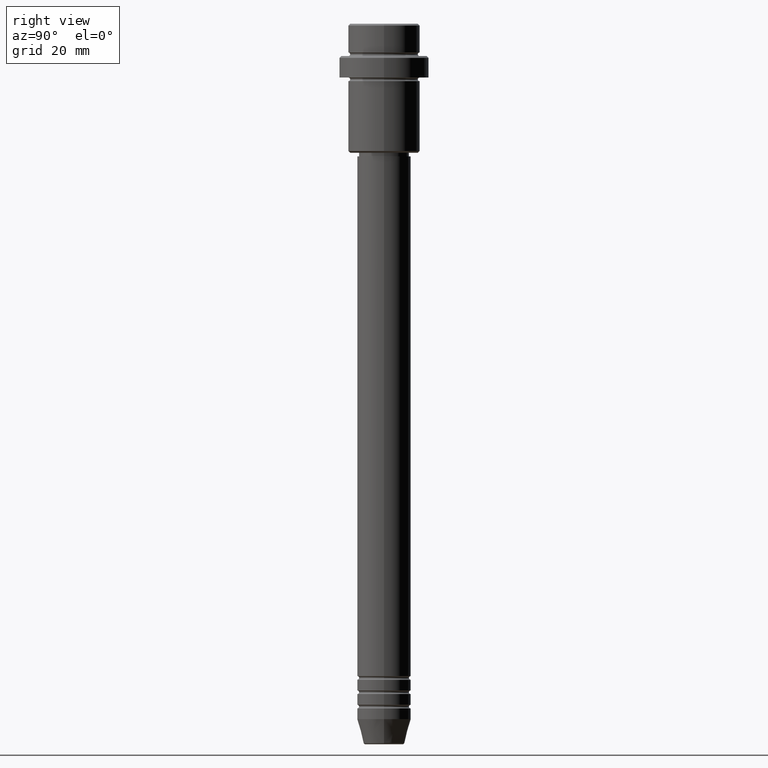
[diagram: clean part render]
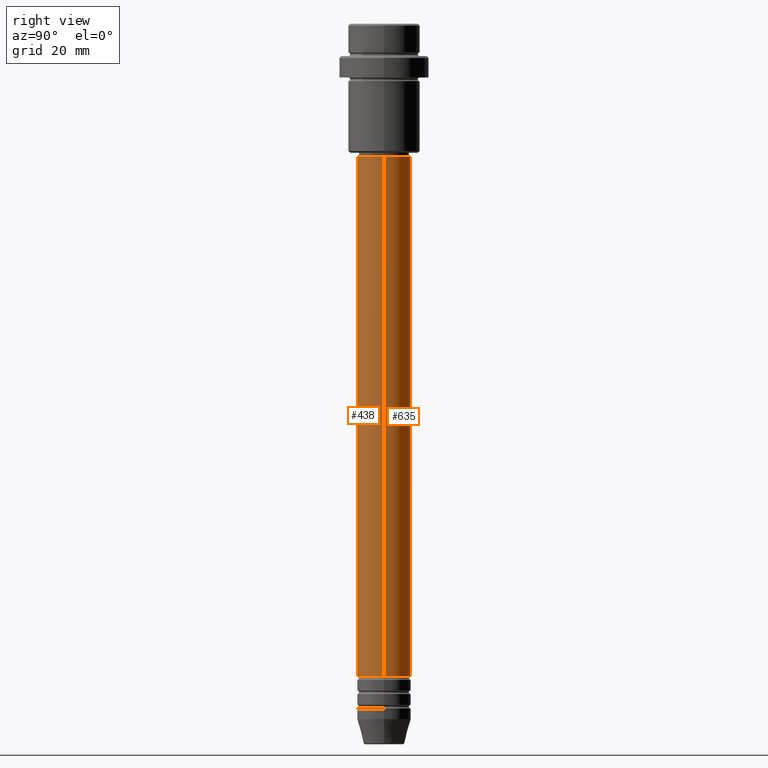
[diagram: same view with one multi-face feature highlighted, each face labeled with its STEP entity id]
A machine part, right view. The highlighted faces form ONE feature: a constant-radius fillet chain: 2 tangent blend faces with common blend radius 7.5 mm. The faces share edges in the B-rep.
Their STEP definitions:
[1] entity #635 (Cylinder):
#11 = CIRCLE ( 'NONE', #124, 7.500000000000000000 ) ;
#18 = CARTESIAN_POINT ( 'NONE',  ( 0.000000000000000000, 0.000000000000000000, -181.9999999999998863 ) ) ;
#38 = VERTEX_POINT ( 'NONE', #1145 ) ;
#55 = AXIS2_PLACEMENT_3D ( 'NONE', #434, #522, #1403 ) ;
#62 = DIRECTION ( 'NONE',  ( -0.000000000000000000, -0.000000000000000000, 1.000000000000000000 ) ) ;
#82 = LINE ( 'NONE', #746, #422 ) ;
#106 = CARTESIAN_POINT ( 'NONE',  ( -7.500000000000000000, 9.184850993605147944E-16, 0.000000000000000000 ) ) ;
#108 = CYLINDRICAL_SURFACE ( 'NONE', #55, 7.500000000000000000 ) ;
#115 = DIRECTION ( 'NONE',  ( -0.000000000000000000, -0.000000000000000000, 1.000000000000000000 ) ) ;
#124 = AXIS2_PLACEMENT_3D ( 'NONE', #1372, #62, #934 ) ;
#189 = ORIENTED_EDGE ( 'NONE', *, *, #1124, .T. ) ;
#378 = VECTOR ( 'NONE', #432, 1000.000000000000000 ) ;
#422 = VECTOR ( 'NONE', #755, 1000.000000000000000 ) ;
#432 = DIRECTION ( 'NONE',  ( -0.000000000000000000, -0.000000000000000000, 1.000000000000000000 ) ) ;
#434 = CARTESIAN_POINT ( 'NONE',  ( 0.000000000000000000, 0.000000000000000000, 0.000000000000000000 ) ) ;
#504 = CARTESIAN_POINT ( 'NONE',  ( -7.500000000000000000, 9.184850993605147944E-16, -37.00000000000000711 ) ) ;
#522 = DIRECTION ( 'NONE',  ( -0.000000000000000000, -0.000000000000000000, 1.000000000000000000 ) ) ;
#635 = ADVANCED_FACE ( 'NONE', ( #644 ), #108, .T. ) ;
#641 = ORIENTED_EDGE ( 'NONE', *, *, #1203, .F. ) ;
#644 = FACE_OUTER_BOUND ( 'NONE', #741, .T. ) ;
#683 = ORIENTED_EDGE ( 'NONE', *, *, #1285, .T. ) ;
#741 = EDGE_LOOP ( 'NONE', ( #683, #189, #1352, #641 ) ) ;
#746 = CARTESIAN_POINT ( 'NONE',  ( 7.500000000000000000, 0.000000000000000000, 0.000000000000000000 ) ) ;
#755 = DIRECTION ( 'NONE',  ( -0.000000000000000000, -0.000000000000000000, 1.000000000000000000 ) ) ;
#807 = VERTEX_POINT ( 'NONE', #992 ) ;
#932 = EDGE_CURVE ( 'NONE', #807, #1121, #11, .T. ) ;
#934 = DIRECTION ( 'NONE',  ( 1.000000000000000000, 0.000000000000000000, 0.000000000000000000 ) ) ;
#963 = CARTESIAN_POINT ( 'NONE',  ( 7.500000000000000000, 0.000000000000000000, -181.9999999999998863 ) ) ;
#992 = CARTESIAN_POINT ( 'NONE',  ( 7.500000000000000000, 0.000000000000000000, -37.00000000000000711 ) ) ;
#1098 = VERTEX_POINT ( 'NONE', #963 ) ;
#1120 = DIRECTION ( 'NONE',  ( 1.000000000000000000, 0.000000000000000000, 0.000000000000000000 ) ) ;
#1121 = VERTEX_POINT ( 'NONE', #504 ) ;
#1124 = EDGE_CURVE ( 'NONE', #38, #1121, #1181, .T. ) ;
#1145 = CARTESIAN_POINT ( 'NONE',  ( -7.500000000000000000, 9.184850993605147944E-16, -181.9999999999998863 ) ) ;
#1170 = AXIS2_PLACEMENT_3D ( 'NONE', #18, #115, #1120 ) ;
#1181 = LINE ( 'NONE', #106, #378 ) ;
#1203 = EDGE_CURVE ( 'NONE', #1098, #807, #82, .T. ) ;
#1285 = EDGE_CURVE ( 'NONE', #1098, #38, #1363, .T. ) ;
#1352 = ORIENTED_EDGE ( 'NONE', *, *, #932, .F. ) ;
#1363 = CIRCLE ( 'NONE', #1170, 7.500000000000000000 ) ;
#1372 = CARTESIAN_POINT ( 'NONE',  ( 0.000000000000000000, 0.000000000000000000, -37.00000000000000711 ) ) ;
#1403 = DIRECTION ( 'NONE',  ( 1.000000000000000000, 0.000000000000000000, 0.000000000000000000 ) ) ;
[2] entity #438 (Cylinder):
#38 = VERTEX_POINT ( 'NONE', #1145 ) ;
#82 = LINE ( 'NONE', #746, #422 ) ;
#106 = CARTESIAN_POINT ( 'NONE',  ( -7.500000000000000000, 9.184850993605147944E-16, 0.000000000000000000 ) ) ;
#138 = CYLINDRICAL_SURFACE ( 'NONE', #1380, 7.500000000000000000 ) ;
#246 = DIRECTION ( 'NONE',  ( -0.000000000000000000, -0.000000000000000000, 1.000000000000000000 ) ) ;
#318 = DIRECTION ( 'NONE',  ( -0.000000000000000000, -0.000000000000000000, 1.000000000000000000 ) ) ;
#345 = ORIENTED_EDGE ( 'NONE', *, *, #465, .F. ) ;
#365 = DIRECTION ( 'NONE',  ( 1.000000000000000000, 0.000000000000000000, 0.000000000000000000 ) ) ;
#378 = VECTOR ( 'NONE', #432, 1000.000000000000000 ) ;
#401 = AXIS2_PLACEMENT_3D ( 'NONE', #513, #318, #1402 ) ;
#422 = VECTOR ( 'NONE', #755, 1000.000000000000000 ) ;
#432 = DIRECTION ( 'NONE',  ( -0.000000000000000000, -0.000000000000000000, 1.000000000000000000 ) ) ;
#438 = ADVANCED_FACE ( 'NONE', ( #1226 ), #138, .T. ) ;
#465 = EDGE_CURVE ( 'NONE', #1121, #807, #879, .T. ) ;
#504 = CARTESIAN_POINT ( 'NONE',  ( -7.500000000000000000, 9.184850993605147944E-16, -37.00000000000000711 ) ) ;
#513 = CARTESIAN_POINT ( 'NONE',  ( 0.000000000000000000, 0.000000000000000000, -181.9999999999998863 ) ) ;
#664 = CARTESIAN_POINT ( 'NONE',  ( 0.000000000000000000, 0.000000000000000000, -37.00000000000000711 ) ) ;
#682 = DIRECTION ( 'NONE',  ( 1.000000000000000000, 0.000000000000000000, 0.000000000000000000 ) ) ;
#727 = ORIENTED_EDGE ( 'NONE', *, *, #1203, .T. ) ;
#746 = CARTESIAN_POINT ( 'NONE',  ( 7.500000000000000000, 0.000000000000000000, 0.000000000000000000 ) ) ;
#755 = DIRECTION ( 'NONE',  ( -0.000000000000000000, -0.000000000000000000, 1.000000000000000000 ) ) ;
#790 = CARTESIAN_POINT ( 'NONE',  ( 0.000000000000000000, 0.000000000000000000, 0.000000000000000000 ) ) ;
#807 = VERTEX_POINT ( 'NONE', #992 ) ;
#879 = CIRCLE ( 'NONE', #1250, 7.500000000000000000 ) ;
#963 = CARTESIAN_POINT ( 'NONE',  ( 7.500000000000000000, 0.000000000000000000, -181.9999999999998863 ) ) ;
#992 = CARTESIAN_POINT ( 'NONE',  ( 7.500000000000000000, 0.000000000000000000, -37.00000000000000711 ) ) ;
#1018 = CIRCLE ( 'NONE', #401, 7.500000000000000000 ) ;
#1085 = ORIENTED_EDGE ( 'NONE', *, *, #1124, .F. ) ;
#1098 = VERTEX_POINT ( 'NONE', #963 ) ;
#1121 = VERTEX_POINT ( 'NONE', #504 ) ;
#1124 = EDGE_CURVE ( 'NONE', #38, #1121, #1181, .T. ) ;
#1145 = CARTESIAN_POINT ( 'NONE',  ( -7.500000000000000000, 9.184850993605147944E-16, -181.9999999999998863 ) ) ;
#1181 = LINE ( 'NONE', #106, #378 ) ;
#1203 = EDGE_CURVE ( 'NONE', #1098, #807, #82, .T. ) ;
#1214 = EDGE_CURVE ( 'NONE', #38, #1098, #1018, .T. ) ;
#1226 = FACE_OUTER_BOUND ( 'NONE', #1334, .T. ) ;
#1250 = AXIS2_PLACEMENT_3D ( 'NONE', #664, #1347, #365 ) ;
#1334 = EDGE_LOOP ( 'NONE', ( #1085, #1348, #727, #345 ) ) ;
#1347 = DIRECTION ( 'NONE',  ( -0.000000000000000000, -0.000000000000000000, 1.000000000000000000 ) ) ;
#1348 = ORIENTED_EDGE ( 'NONE', *, *, #1214, .T. ) ;
#1380 = AXIS2_PLACEMENT_3D ( 'NONE', #790, #246, #682 ) ;
#1402 = DIRECTION ( 'NONE',  ( 1.000000000000000000, 0.000000000000000000, 0.000000000000000000 ) ) ;